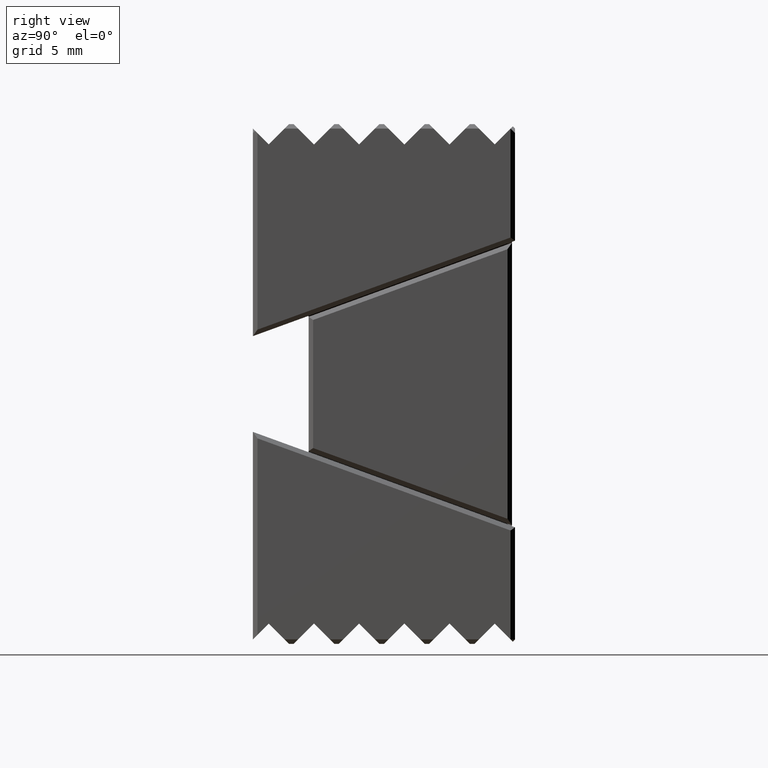
[diagram: clean part render]
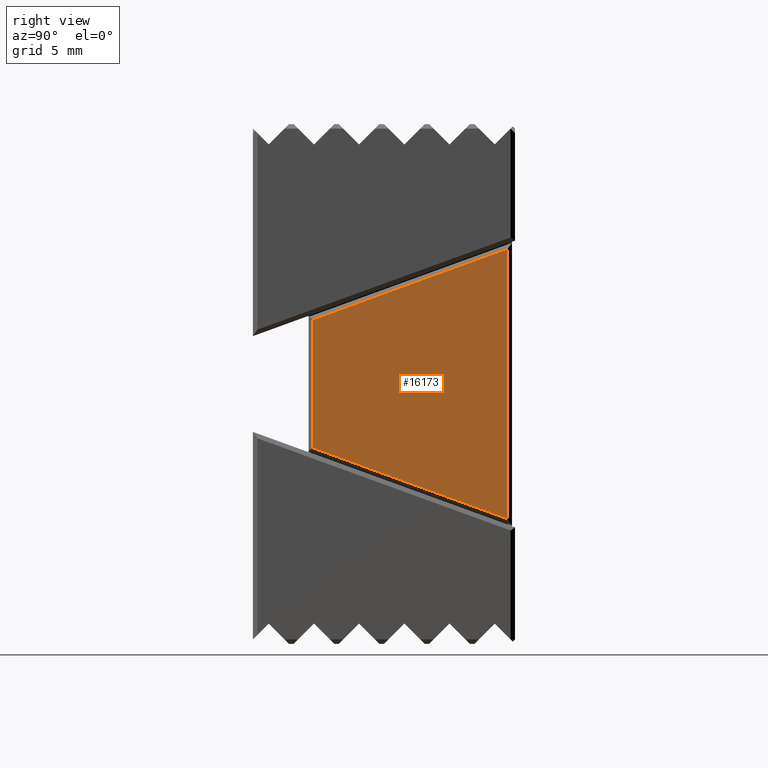
[diagram: same view with one face highlighted and labeled with its STEP entity id]
A machine part, right view. The second image highlights one B-rep face of the part: STEP entity #16173.
In plain terms, the highlighted planar face has unit normal (-1, 0, 0).
Its self-contained STEP definition (entity closure, byte-faithful):
#112 = FACE_OUTER_BOUND ( 'NONE', #19045, .T. ) ;
#295 = CARTESIAN_POINT ( 'NONE',  ( 0.4899999999999999911, 0.4399999999999998357, -0.2982097205528974060 ) ) ;
#1327 = ORIENTED_EDGE ( 'NONE', *, *, #1831, .T. ) ;
#1798 = DIRECTION ( 'NONE',  ( -1.000000000000000000, 0.0000000000000000000, 0.0000000000000000000 ) ) ;
#1831 = EDGE_CURVE ( 'NONE', #18973, #5745, #14138, .T. ) ;
#3942 = DIRECTION ( 'NONE',  ( 0.0000000000000000000, 0.0000000000000000000, 1.000000000000000000 ) ) ;
#5745 = VERTEX_POINT ( 'NONE', #9427 ) ;
#5760 = CARTESIAN_POINT ( 'NONE',  ( 0.4899999999999999911, 0.009999999999999849287, -0.1417025198184329038 ) ) ;
#6407 = PLANE ( 'NONE',  #8096 ) ;
#6613 = DIRECTION ( 'NONE',  ( 0.0000000000000000000, 0.0000000000000000000, -1.000000000000000000 ) ) ;
#6640 = VECTOR ( 'NONE', #6613, 39.37007874015748143 ) ;
#6764 = EDGE_CURVE ( 'NONE', #5745, #10122, #13885, .T. ) ;
#7047 = CARTESIAN_POINT ( 'NONE',  ( 0.4899999999999999911, 0.4399999999999998357, 0.0000000000000000000 ) ) ;
#7293 = ORIENTED_EDGE ( 'NONE', *, *, #11836, .T. ) ;
#8096 = AXIS2_PLACEMENT_3D ( 'NONE', #12539, #1798, #12608 ) ;
#8916 = CARTESIAN_POINT ( 'NONE',  ( 0.4899999999999999911, 0.4534202014332563979, -0.3030942744124593413 ) ) ;
#9427 = CARTESIAN_POINT ( 'NONE',  ( 0.4899999999999999911, 0.4399999999999998357, 0.2982097205528974615 ) ) ;
#9531 = VECTOR ( 'NONE', #3942, 39.37007874015748143 ) ;
#10122 = VERTEX_POINT ( 'NONE', #19088 ) ;
#10211 = CARTESIAN_POINT ( 'NONE',  ( 0.4899999999999999911, -0.04437253421591937780, 0.1219125358022180722 ) ) ;
#10425 = DIRECTION ( 'NONE',  ( 0.0000000000000000000, 0.9396926207859100932, -0.3420201433256638834 ) ) ;
#11073 = ORIENTED_EDGE ( 'NONE', *, *, #17947, .T. ) ;
#11790 = DIRECTION ( 'NONE',  ( 0.0000000000000000000, -0.9396926207859100932, -0.3420201433256638834 ) ) ;
#11836 = EDGE_CURVE ( 'NONE', #10122, #14197, #14886, .T. ) ;
#12193 = VECTOR ( 'NONE', #10425, 39.37007874015748143 ) ;
#12539 = CARTESIAN_POINT ( 'NONE',  ( 0.4899999999999999911, 0.0000000000000000000, 0.0000000000000000000 ) ) ;
#12608 = DIRECTION ( 'NONE',  ( 0.0000000000000000000, 0.0000000000000000000, 1.000000000000000000 ) ) ;
#13396 = VECTOR ( 'NONE', #11790, 39.37007874015748143 ) ;
#13885 = LINE ( 'NONE', #10211, #13396 ) ;
#14138 = LINE ( 'NONE', #7047, #9531 ) ;
#14197 = VERTEX_POINT ( 'NONE', #5760 ) ;
#14886 = LINE ( 'NONE', #17428, #6640 ) ;
#16173 = ADVANCED_FACE ( 'NONE', ( #112 ), #6407, .F. ) ;
#16318 = LINE ( 'NONE', #8916, #12193 ) ;
#17428 = CARTESIAN_POINT ( 'NONE',  ( 0.4899999999999999911, 0.009999999999999849287, 0.0000000000000000000 ) ) ;
#17947 = EDGE_CURVE ( 'NONE', #14197, #18973, #16318, .T. ) ;
#18384 = ORIENTED_EDGE ( 'NONE', *, *, #6764, .T. ) ;
#18973 = VERTEX_POINT ( 'NONE', #295 ) ;
#19045 = EDGE_LOOP ( 'NONE', ( #18384, #7293, #11073, #1327 ) ) ;
#19088 = CARTESIAN_POINT ( 'NONE',  ( 0.4899999999999999911, 0.009999999999999849287, 0.1417025198184329593 ) ) ;